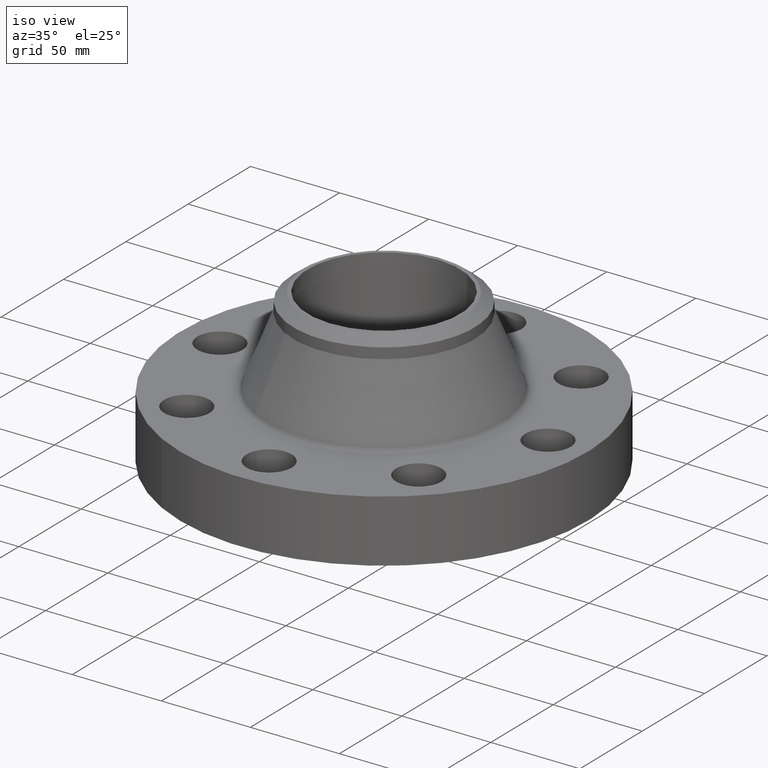
[diagram: clean part render]
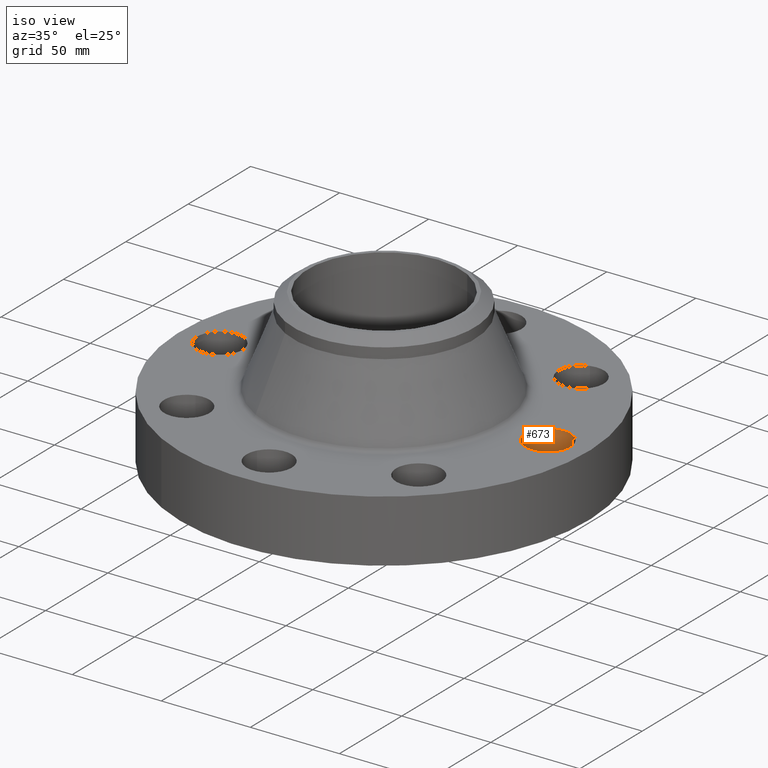
[diagram: same view with one face highlighted and labeled with its STEP entity id]
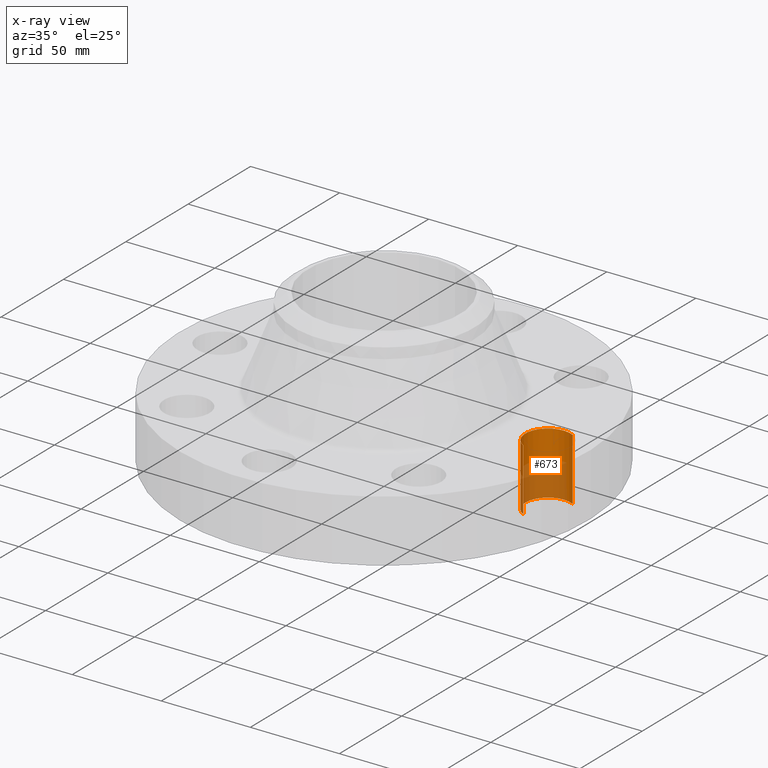
[diagram: x-ray of the same camera — body ghosted, the highlighted face saturated]
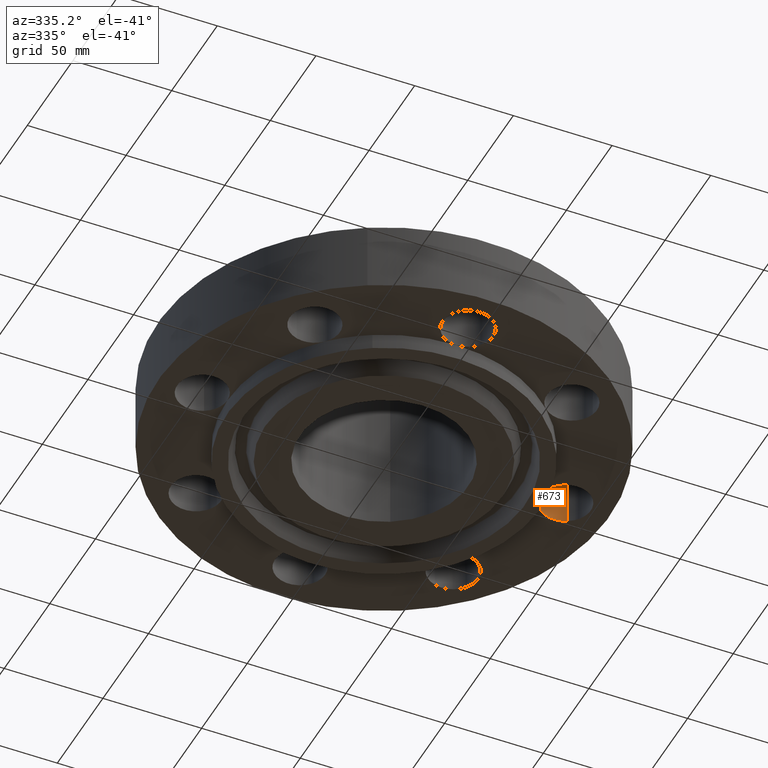
[diagram: same view with one face highlighted and labeled with its STEP entity id]
A machine part, iso view. The second image highlights one B-rep face of the part: STEP entity #673.
The next image is the same camera in x-ray: the body ghosted, the highlighted face saturated — about 48% of this face is hidden behind the body in this view.
A second angle (auxiliary view) of the same face is appended — the face is thin or edge-on in the first view.
In plain terms, the highlighted cylindrical surface (edge-blend (fillet) strip) has radius 12.7 mm, axis along (0, -0, -1).
Its self-contained STEP definition (entity closure, byte-faithful):
#163=AXIS2_PLACEMENT_3D('Circle Axis2P3D',#161,#162,$) ;
#179=AXIS2_PLACEMENT_3D('Circle Axis2P3D',#177,#178,$) ;
#471=AXIS2_PLACEMENT_3D('Circle Axis2P3D',#469,#470,$) ;
#654=AXIS2_PLACEMENT_3D('Cylinder Axis2P3D',#651,#652,#653) ;
#161=CARTESIAN_POINT('Axis2P3D Location',(3.62499999993,-7.78268088645E-011,0.)) ;
#165=CARTESIAN_POINT('Vertex',(3.38528723067,-0.438791280969,0.)) ;
#167=CARTESIAN_POINT('Vertex',(3.12500000001,0.,2.61916123086E-011)) ;
#174=CARTESIAN_POINT('Vertex',(3.86471276934,0.438791280916,0.)) ;
#177=CARTESIAN_POINT('Axis2P3D Location',(3.625,-2.64019777169E-012,0.)) ;
#469=CARTESIAN_POINT('Axis2P3D Location',(3.62500000004,1.04779876814E-011,1.38000000001)) ;
#473=CARTESIAN_POINT('Vertex',(3.38528723071,-0.438791280948,1.37999999999)) ;
#475=CARTESIAN_POINT('Vertex',(3.86471276931,0.438791280947,1.37999999999)) ;
#651=CARTESIAN_POINT('Axis2P3D Location',(3.62500000001,2.21967232346E-016,1.37606299213)) ;
#656=CARTESIAN_POINT('Line Origine',(3.38528723071,-0.438791280947,0.690000000005)) ;
#661=CARTESIAN_POINT('Line Origine',(3.86471276931,0.438791280947,0.690000000005)) ;
#162=DIRECTION('Axis2P3D Direction',(0.,0.,-0.0393700787402)) ;
#178=DIRECTION('Axis2P3D Direction',(0.,0.,-0.0393700787402)) ;
#470=DIRECTION('Axis2P3D Direction',(0.,0.,-0.0393700787402)) ;
#652=DIRECTION('Axis2P3D Direction',(0.,-0.,-0.0393700787402)) ;
#653=DIRECTION('Axis2P3D XDirection',(-0.0188750212047,-0.0345504945627,0.)) ;
#657=DIRECTION('Vector Direction',(0.,0.,-0.0393700787402)) ;
#662=DIRECTION('Vector Direction',(0.,0.,-0.0393700787402)) ;
#658=VECTOR('Line Direction',#657,0.0393700787402) ;
#663=VECTOR('Line Direction',#662,0.0393700787402) ;
#667=ORIENTED_EDGE('',*,*,#660,.F.) ;
#668=ORIENTED_EDGE('',*,*,#169,.T.) ;
#669=ORIENTED_EDGE('',*,*,#181,.T.) ;
#670=ORIENTED_EDGE('',*,*,#665,.T.) ;
#671=ORIENTED_EDGE('',*,*,#477,.F.) ;
#673=ADVANCED_FACE('PartBody',(#672),#655,.F.) ;
#164=CIRCLE('generated circle',#163,0.499999999932) ;
#180=CIRCLE('generated circle',#179,0.499999999997) ;
#472=CIRCLE('generated circle',#471,0.500000000013) ;
#655=CYLINDRICAL_SURFACE('generated cylinder',#654,0.500000000002) ;
#169=EDGE_CURVE('',#166,#168,#164,.T.) ;
#181=EDGE_CURVE('',#168,#175,#180,.T.) ;
#477=EDGE_CURVE('',#474,#476,#472,.T.) ;
#660=EDGE_CURVE('',#166,#474,#659,.F.) ;
#665=EDGE_CURVE('',#175,#476,#664,.F.) ;
#666=EDGE_LOOP('',(#667,#668,#669,#670,#671)) ;
#672=FACE_OUTER_BOUND('',#666,.T.) ;
#659=LINE('Line',#656,#658) ;
#664=LINE('Line',#661,#663) ;
#166=VERTEX_POINT('',#165) ;
#168=VERTEX_POINT('',#167) ;
#175=VERTEX_POINT('',#174) ;
#474=VERTEX_POINT('',#473) ;
#476=VERTEX_POINT('',#475) ;